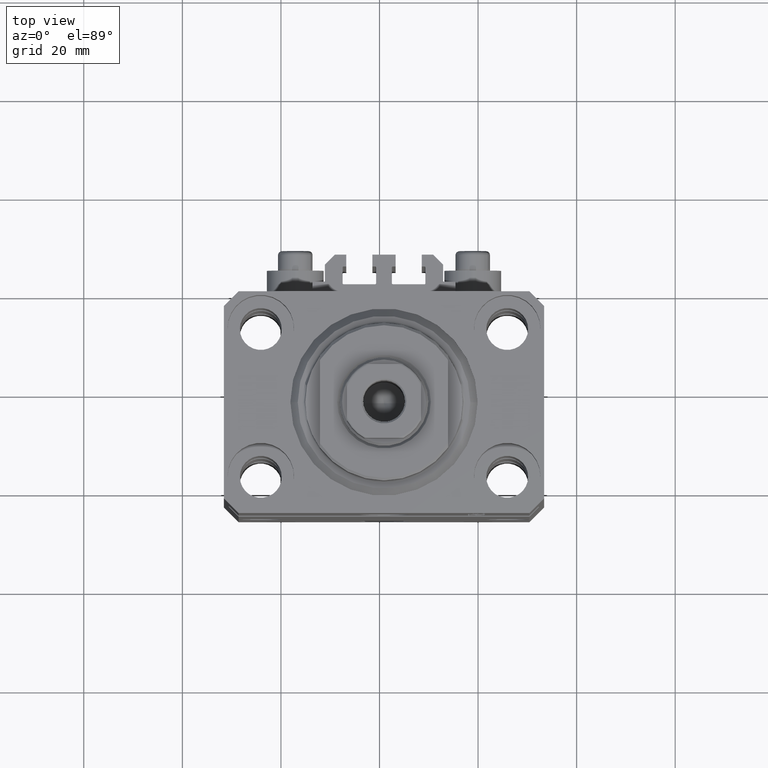
[diagram: clean part render]
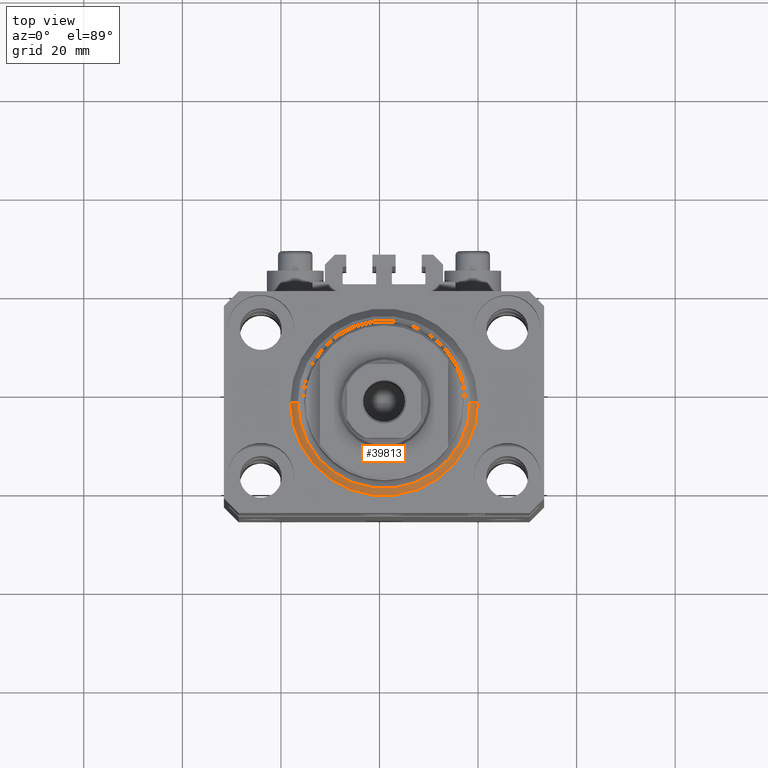
[diagram: same view with one face highlighted and labeled with its STEP entity id]
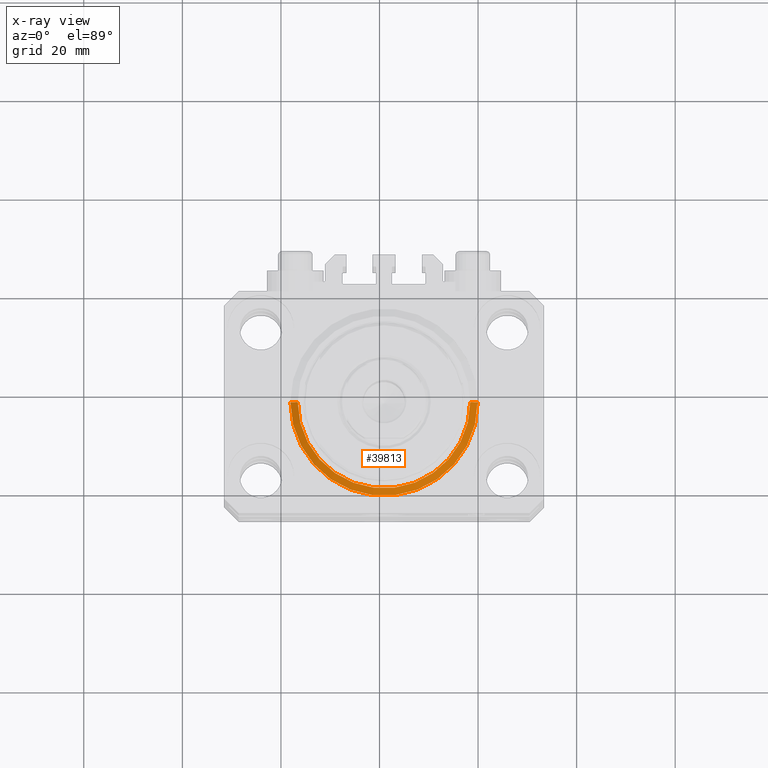
[diagram: x-ray of the same camera — body ghosted, the highlighted face saturated]
A machine part, top view. The second image highlights one B-rep face of the part: STEP entity #39813.
The next image is the same camera in x-ray: the body ghosted, the highlighted face saturated — about 0% of this face is hidden behind the body in this view.
In plain terms, the highlighted conical surface has half-angle 45 deg.
Its self-contained STEP definition (entity closure, byte-faithful):
#1247 = LINE ( 'NONE', #27544, #11130 ) ;
#1862 = CARTESIAN_POINT ( 'NONE',  ( 0.000000000000000000, 0.000000000000000000, 1.500000000000004885 ) ) ;
#2755 = DIRECTION ( 'NONE',  ( -0.000000000000000000, -0.000000000000000000, -1.000000000000000000 ) ) ;
#4077 = DIRECTION ( 'NONE',  ( 1.000000000000000000, 0.000000000000000000, 0.000000000000000000 ) ) ;
#5193 = DIRECTION ( 'NONE',  ( -0.7071067811865483499, 8.659560562354943952E-17, 0.7071067811865467956 ) ) ;
#5436 = CIRCLE ( 'NONE', #33173, 17.49999999999999289 ) ;
#6351 = EDGE_LOOP ( 'NONE', ( #26052, #23578, #46347, #12862 ) ) ;
#8723 = CARTESIAN_POINT ( 'NONE',  ( 19.00000000000000000, 2.326828918379970970E-15, 1.500000000000004885 ) ) ;
#9104 = FACE_OUTER_BOUND ( 'NONE', #6351, .T. ) ;
#11130 = VECTOR ( 'NONE', #30682, 1000.000000000000000 ) ;
#12090 = EDGE_CURVE ( 'NONE', #39073, #20529, #34123, .T. ) ;
#12862 = ORIENTED_EDGE ( 'NONE', *, *, #12090, .F. ) ;
#13783 = EDGE_CURVE ( 'NONE', #22497, #20529, #1247, .T. ) ;
#14458 = VERTEX_POINT ( 'NONE', #38599 ) ;
#14547 = CONICAL_SURFACE ( 'NONE', #37630, 19.00000000000000000, 0.7853981633974492782 ) ;
#14862 = CARTESIAN_POINT ( 'NONE',  ( -19.00000000000000000, 0.000000000000000000, 1.500000000000004885 ) ) ;
#20529 = VERTEX_POINT ( 'NONE', #8723 ) ;
#21049 = CARTESIAN_POINT ( 'NONE',  ( -19.00000000000000000, 2.326828918379970970E-15, 1.500000000000004885 ) ) ;
#21575 = DIRECTION ( 'NONE',  ( 1.000000000000000000, 0.000000000000000000, 0.000000000000000000 ) ) ;
#22497 = VERTEX_POINT ( 'NONE', #38826 ) ;
#23303 = LINE ( 'NONE', #21049, #33855 ) ;
#23348 = AXIS2_PLACEMENT_3D ( 'NONE', #26295, #44380, #4077 ) ;
#23578 = ORIENTED_EDGE ( 'NONE', *, *, #44708, .F. ) ;
#26052 = ORIENTED_EDGE ( 'NONE', *, *, #43032, .F. ) ;
#26295 = CARTESIAN_POINT ( 'NONE',  ( 0.000000000000000000, 0.000000000000000000, 1.500000000000004885 ) ) ;
#26978 = DIRECTION ( 'NONE',  ( -0.000000000000000000, -0.000000000000000000, 1.000000000000000000 ) ) ;
#27544 = CARTESIAN_POINT ( 'NONE',  ( 19.00000000000000000, 0.000000000000000000, 1.500000000000004885 ) ) ;
#30682 = DIRECTION ( 'NONE',  ( 0.7071067811865483499, 0.000000000000000000, 0.7071067811865467956 ) ) ;
#31309 = DIRECTION ( 'NONE',  ( 1.000000000000000000, 0.000000000000000000, 0.000000000000000000 ) ) ;
#33173 = AXIS2_PLACEMENT_3D ( 'NONE', #40385, #2755, #21575 ) ;
#33855 = VECTOR ( 'NONE', #5193, 1000.000000000000000 ) ;
#34123 = CIRCLE ( 'NONE', #23348, 19.00000000000000000 ) ;
#37630 = AXIS2_PLACEMENT_3D ( 'NONE', #1862, #26978, #31309 ) ;
#38599 = CARTESIAN_POINT ( 'NONE',  ( -17.49999999999999289, 2.234980408443919215E-15, 0.000000000000000000 ) ) ;
#38826 = CARTESIAN_POINT ( 'NONE',  ( 17.49999999999999289, 0.000000000000000000, 0.000000000000000000 ) ) ;
#39073 = VERTEX_POINT ( 'NONE', #14862 ) ;
#39813 = ADVANCED_FACE ( 'NONE', ( #9104 ), #14547, .T. ) ;
#40385 = CARTESIAN_POINT ( 'NONE',  ( 0.000000000000000000, 0.000000000000000000, 0.000000000000000000 ) ) ;
#43032 = EDGE_CURVE ( 'NONE', #14458, #39073, #23303, .T. ) ;
#44380 = DIRECTION ( 'NONE',  ( -0.000000000000000000, -0.000000000000000000, 1.000000000000000000 ) ) ;
#44708 = EDGE_CURVE ( 'NONE', #22497, #14458, #5436, .T. ) ;
#46347 = ORIENTED_EDGE ( 'NONE', *, *, #13783, .T. ) ;